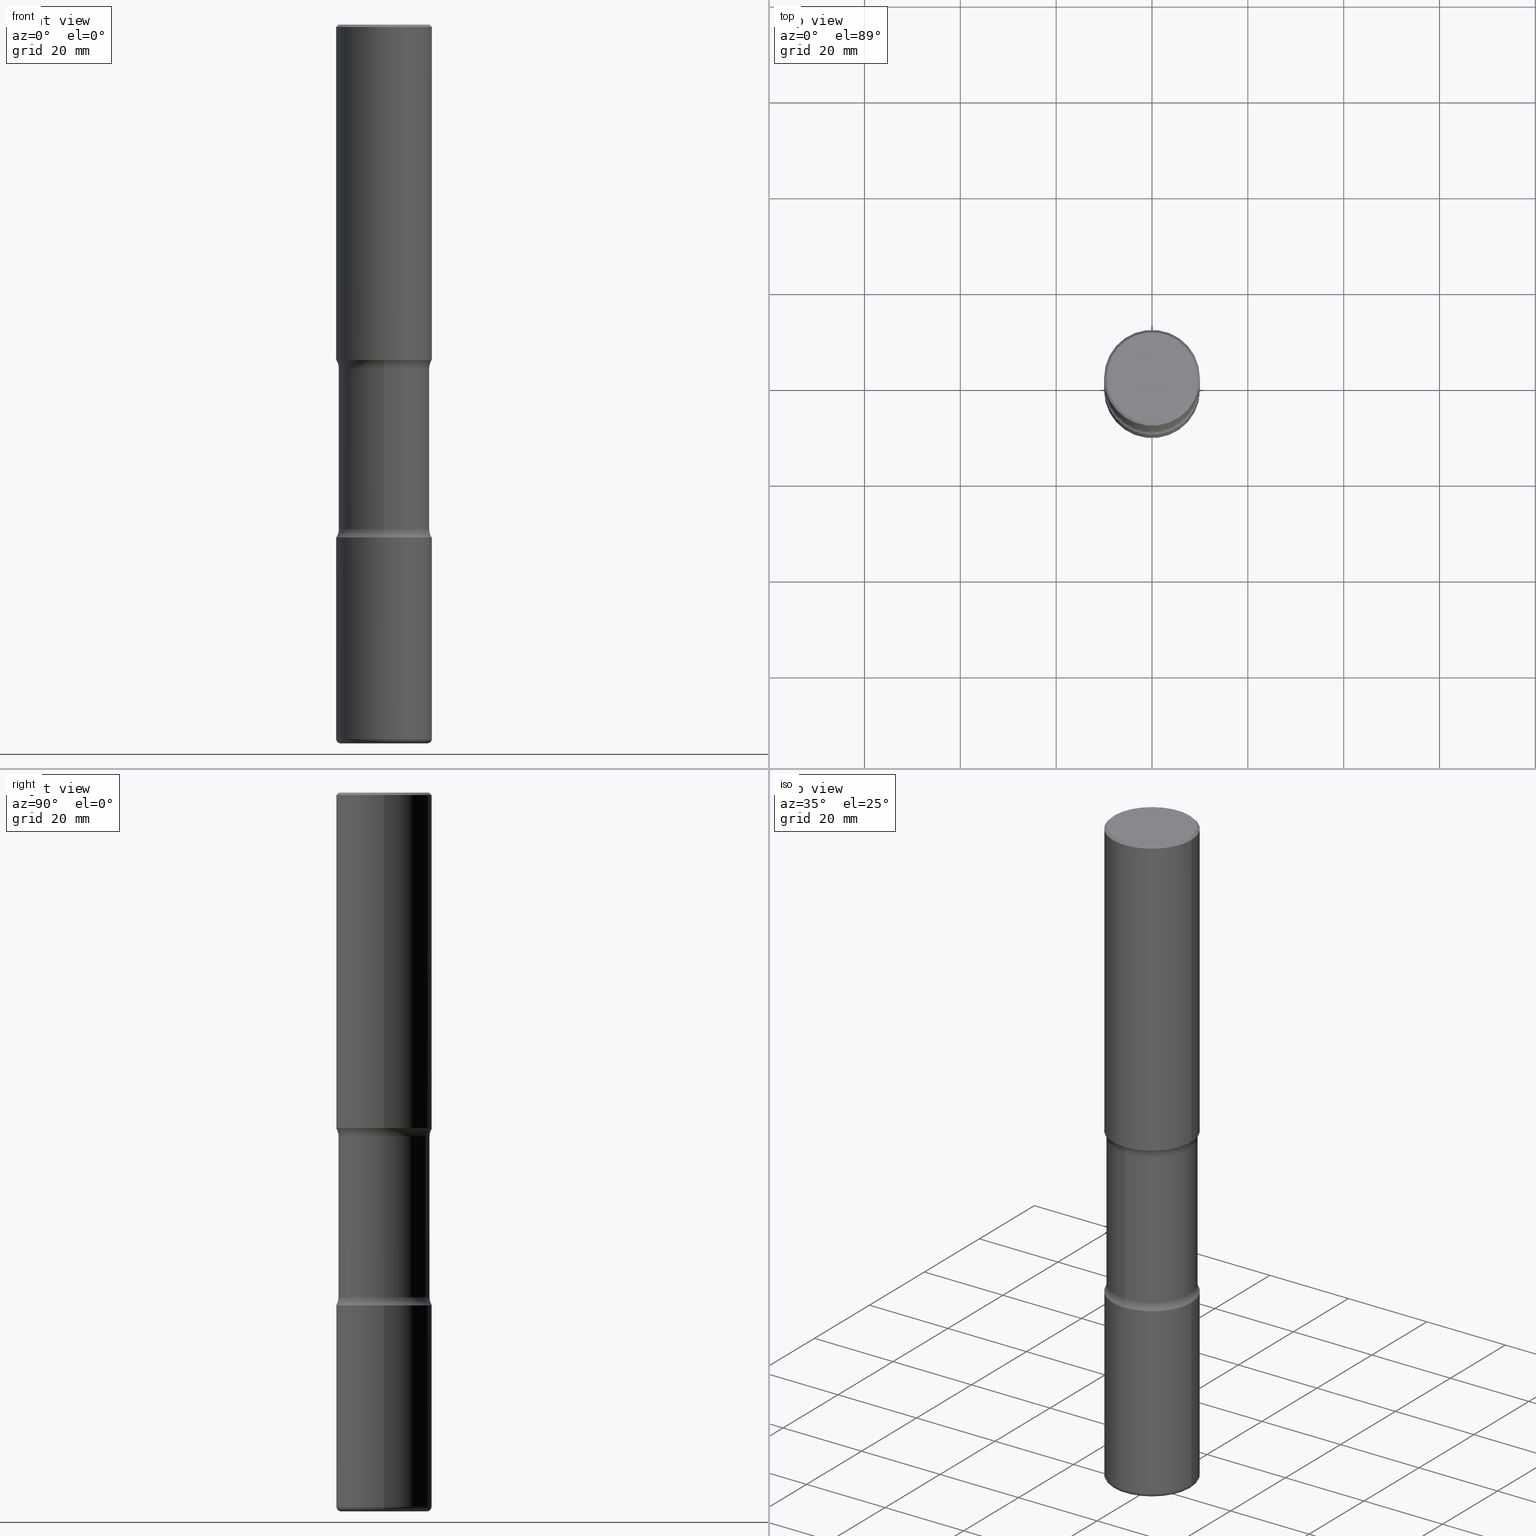
[diagram: canonical four-view strip — front | top / right | iso, engineering-drawing reading convention]
A machine part, canonical four-view strip (front | top / right | iso — engineering-drawing reading convention). The complete STEP part file that produces these views, byte-faithful:
ISO-10303-21;
HEADER;
FILE_DESCRIPTION (( 'STEP AP203' ),
    '1' );
FILE_NAME ('47742.STEP',
    '2024-03-02T08:18:57',
    ( '' ),
    ( '' ),
    'SwSTEP 2.0',
    'SolidWorks 2023',
    '' );
FILE_SCHEMA (( 'CONFIG_CONTROL_DESIGN' ));
ENDSEC;

DATA;
#1 = DIRECTION ( 'NONE',  ( -2.445468806185136597E-29, 3.491481338843145583E-15, 1.000000000000000000 ) ) ;
#2 = DIRECTION ( 'NONE',  ( -2.445468806185136597E-29, 3.491481338843145583E-15, 1.000000000000000000 ) ) ;
#3 = CARTESIAN_POINT ( 'NONE',  ( 1.453329336974072664E-28, -2.048779909082575425E-14, -5.905499999999998195 ) ) ;
#4 = CC_DESIGN_DATE_AND_TIME_ASSIGNMENT ( #299, #114, ( #406 ) ) ;
#5 = DIRECTION ( 'NONE',  ( 0.7071067811865466846, -7.319954787623252890E-15, -0.7071067811865483499 ) ) ;
#6 = CARTESIAN_POINT ( 'NONE',  ( 6.660667374498401538E-29, -9.735019662066511300E-15, -2.755899999999998240 ) ) ;
#7 = AXIS2_PLACEMENT_3D ( 'NONE', #196, #28, #375 ) ;
#8 = DIRECTION ( 'NONE',  ( -2.445468806185136877E-29, 3.491481338843145188E-15, 1.000000000000000000 ) ) ;
#9 = ORIENTED_EDGE ( 'NONE', *, *, #101, .T. ) ;
#10 = CARTESIAN_POINT ( 'NONE',  ( 1.453329336974072664E-28, -2.048779909082575425E-14, -5.905499999999998195 ) ) ;
#11 = EDGE_CURVE ( 'NONE', #360, #243, #505, .T. ) ;
#12 = DIRECTION ( 'NONE',  ( -6.982962677686266711E-15, -1.000000000000000000, 3.491481338843145583E-15 ) ) ;
#13 = CIRCLE ( 'NONE', #419, 0.3740000000000001656 ) ;
#14 = CALENDAR_DATE ( 2024, 2, 3 ) ;
#15 = CIRCLE ( 'NONE', #382, 0.3740000000000001656 ) ;
#16 = DIRECTION ( 'NONE',  ( 2.499563752616943710E-29, -3.414014296659653741E-15, -1.000000000000000000 ) ) ;
#17 = ADVANCED_FACE ( 'NONE', ( #352 ), #400, .T. ) ;
#18 = DIRECTION ( 'NONE',  ( 1.000000000000000000, 0.000000000000000000, 0.000000000000000000 ) ) ;
#19 = ORIENTED_EDGE ( 'NONE', *, *, #321, .F. ) ;
#20 = CARTESIAN_POINT ( 'NONE',  ( 2.611628041454809941E-15, 0.3739999999999796820, -5.905499999999999972 ) ) ;
#21 = APPLICATION_PROTOCOL_DEFINITION ( 'international standard', 'config_control_design', 1994, #560 ) ;
#22 = ORIENTED_EDGE ( 'NONE', *, *, #111, .T. ) ;
#23 = CARTESIAN_POINT ( 'NONE',  ( 6.739467482965614869E-29, -9.622173421717819657E-15, -2.755899999999998240 ) ) ;
#24 = CARTESIAN_POINT ( 'NONE',  ( -0.3936999999999999389, 2.679362779428219524E-15, -0.02000000000000010103 ) ) ;
#25 = ORIENTED_EDGE ( 'NONE', *, *, #97, .T. ) ;
#26 = VECTOR ( 'NONE', #510, 39.37007874015748143 ) ;
#27 = VECTOR ( 'NONE', #5, 39.37007874015748143 ) ;
#28 = DIRECTION ( 'NONE',  ( -2.445468806185136597E-29, 3.491481338843145583E-15, 1.000000000000000000 ) ) ;
#29 = ORIENTED_EDGE ( 'NONE', *, *, #530, .T. ) ;
#30 = ADVANCED_FACE ( 'NONE', ( #178 ), #394, .F. ) ;
#31 = PRODUCT ( '47742', '47742', '', ( #182 ) ) ;
#32 = CARTESIAN_POINT ( 'NONE',  ( -2.700978061722587749E-15, -0.3937000000000100419, -2.755899999999997352 ) ) ;
#33 = ORIENTED_EDGE ( 'NONE', *, *, #282, .T. ) ;
#34 = CC_DESIGN_PERSON_AND_ORGANIZATION_ASSIGNMENT ( #242, #126, ( #317 ) ) ;
#35 = CARTESIAN_POINT ( 'NONE',  ( -2.633402156444536217E-15, -0.3740000000000101577, -2.823256588393413313 ) ) ;
#36 = CALENDAR_DATE ( 2024, 2, 3 ) ;
#37 = AXIS2_PLACEMENT_3D ( 'NONE', #407, #188, #368 ) ;
#38 = DIRECTION ( 'NONE',  ( 1.000000000000000000, -6.982962677686265133E-15, 0.000000000000000000 ) ) ;
#39 = CARTESIAN_POINT ( 'NONE',  ( 1.030178189293550378E-28, -1.470821428801063089E-14, -4.212599999999998346 ) ) ;
#40 = DIRECTION ( 'NONE',  ( 2.499563752616943710E-29, -3.414014296659653741E-15, -1.000000000000000000 ) ) ;
#41 = CARTESIAN_POINT ( 'NONE',  ( 2.611628041454733028E-15, 0.3739999999999901736, -2.823256588393415534 ) ) ;
#42 = EDGE_CURVE ( 'NONE', #408, #417, #52, .T. ) ;
#43 = CARTESIAN_POINT ( 'NONE',  ( 4.890937612370298557E-31, -6.982962677686327354E-17, -0.02000000000000010103 ) ) ;
#44 = CARTESIAN_POINT ( 'NONE',  ( 1.434536456396262699E-28, -2.048137868178777275E-14, -5.866099999999998538 ) ) ;
#45 = VECTOR ( 'NONE', #184, 39.37007874015748143 ) ;
#46 = AXIS2_PLACEMENT_3D ( 'NONE', #39, #84, #254 ) ;
#47 = EDGE_CURVE ( 'NONE', #285, #247, #289, .T. ) ;
#48 = CARTESIAN_POINT ( 'NONE',  ( -2.633402156444500718E-15, -0.3740000000000146541, -4.145243411606582384 ) ) ;
#49 = CARTESIAN_POINT ( 'NONE',  ( -2.565826251166408560E-15, -0.3740000000000206493, -5.905499999999997307 ) ) ;
#50 = MANIFOLD_SOLID_BREP ( 'Body-Move/Copy2[4]', #324 ) ;
#51 = DIRECTION ( 'NONE',  ( 2.499563752616943710E-29, -3.414014296659653741E-15, -1.000000000000000000 ) ) ;
#52 = CIRCLE ( 'NONE', #310, 0.3936999999999999389 ) ;
#53 = AXIS2_PLACEMENT_3D ( 'NONE', #558, #160, #38 ) ;
#54 = ORIENTED_EDGE ( 'NONE', *, *, #426, .T. ) ;
#55 = ADVANCED_FACE ( 'NONE', ( #222 ), #397, .T. ) ;
#56 = VERTEX_POINT ( 'NONE', #171 ) ;
#57 = EDGE_LOOP ( 'NONE', ( #119, #94, #197, #458 ) ) ;
#58 = MANIFOLD_SOLID_BREP ( 'Body-Move/Copy2[2]', #105 ) ;
#59 = DIRECTION ( 'NONE',  ( 2.499563752616943710E-29, -3.414014296659653741E-15, -1.000000000000000000 ) ) ;
#60 = TOROIDAL_SURFACE ( 'NONE', #512, 0.4990000000000002212, 0.1249999999999998751 ) ;
#61 = AXIS2_PLACEMENT_3D ( 'NONE', #144, #278, #233 ) ;
#62 = CARTESIAN_POINT ( 'NONE',  ( 0.000000000000000000, 0.000000000000000000, 0.000000000000000000 ) ) ;
#63 = EDGE_CURVE ( 'NONE', #374, #543, #133, .T. ) ;
#64 = CARTESIAN_POINT ( 'NONE',  ( 1.030178189293550378E-28, -1.470821428801063089E-14, -4.212599999999998346 ) ) ;
#65 = ORIENTED_EDGE ( 'NONE', *, *, #101, .F. ) ;
#66 = CARTESIAN_POINT ( 'NONE',  ( -0.3936999999999999389, 2.679362779428219524E-15, -0.02000000000000010103 ) ) ;
#67 = APPROVAL_ROLE ( '' ) ;
#68 = ORIENTED_EDGE ( 'NONE', *, *, #282, .F. ) ;
#69 = DIRECTION ( 'NONE',  ( 1.000000000000000000, -6.982962677686266711E-15, 4.876212485538976239E-29 ) ) ;
#70 = ADVANCED_FACE ( 'NONE', ( #219 ), #525, .F. ) ;
#71 = ORIENTED_EDGE ( 'NONE', *, *, #128, .F. ) ;
#72 = APPROVAL_PERSON_ORGANIZATION ( #284, #309, #67 ) ;
#73 = DIRECTION ( 'NONE',  ( 2.499563752616943710E-29, -3.414014296659653741E-15, -1.000000000000000000 ) ) ;
#74 = EDGE_CURVE ( 'NONE', #149, #521, #492, .T. ) ;
#75 = SHAPE_DEFINITION_REPRESENTATION ( #271, #549 ) ;
#76 = EDGE_LOOP ( 'NONE', ( #112, #164 ) ) ;
#77 = DIRECTION ( 'NONE',  ( -1.000000000000000000, 6.982962677686265922E-15, -4.883557194083112340E-29 ) ) ;
#78 = ORIENTED_EDGE ( 'NONE', *, *, #189, .F. ) ;
#79 = DIRECTION ( 'NONE',  ( -2.445468806185136597E-29, 3.491481338843145583E-15, 1.000000000000000000 ) ) ;
#80 = APPROVAL_DATE_TIME ( #163, #309 ) ;
#81 = AXIS2_PLACEMENT_3D ( 'NONE', #501, #455, #69 ) ;
#82 = EDGE_CURVE ( 'NONE', #500, #374, #13, .T. ) ;
#83 = AXIS2_PLACEMENT_3D ( 'NONE', #43, #516, #211 ) ;
#84 = DIRECTION ( 'NONE',  ( -2.499563752616943430E-29, 3.414014296659653741E-15, 1.000000000000000000 ) ) ;
#85 = ORIENTED_EDGE ( 'NONE', *, *, #134, .F. ) ;
#86 = DIRECTION ( 'NONE',  ( 6.982962677686266711E-15, 1.000000000000000000, -2.921762560068729411E-15 ) ) ;
#87 = DIRECTION ( 'NONE',  ( 1.000000000000000000, -6.982962677686266711E-15, 4.876176775795935793E-29 ) ) ;
#88 = DIRECTION ( 'NONE',  ( -2.445468806185136877E-29, 3.491481338843145188E-15, 1.000000000000000000 ) ) ;
#89 = FACE_OUTER_BOUND ( 'NONE', #76, .T. ) ;
#90 = AXIS2_PLACEMENT_3D ( 'NONE', #328, #73, #320 ) ;
#91 = ORIENTED_EDGE ( 'NONE', *, *, #132, .T. ) ;
#92 = ORIENTED_EDGE ( 'NONE', *, *, #338, .F. ) ;
#93 = EDGE_LOOP ( 'NONE', ( #401, #91 ) ) ;
#94 = ORIENTED_EDGE ( 'NONE', *, *, #11, .T. ) ;
#95 = ORIENTED_EDGE ( 'NONE', *, *, #269, .T. ) ;
#96 = LINE ( 'NONE', #520, #251 ) ;
#97 = EDGE_CURVE ( 'NONE', #360, #122, #96, .T. ) ;
#98 = APPROVAL_PERSON_ORGANIZATION ( #366, #418, #499 ) ;
#99 = VERTEX_POINT ( 'NONE', #312 ) ;
#100 = CARTESIAN_POINT ( 'NONE',  ( 3.484498376165549498E-15, 0.4989999999999857327, -4.145243411606585049 ) ) ;
#101 = EDGE_CURVE ( 'NONE', #285, #243, #548, .T. ) ;
#102 = DIRECTION ( 'NONE',  ( 0.000000000000000000, 0.000000000000000000, 1.000000000000000000 ) ) ;
#103 = ORIENTED_EDGE ( 'NONE', *, *, #507, .F. ) ;
#104 = LINE ( 'NONE', #150, #45 ) ;
#105 = CLOSED_SHELL ( 'NONE', ( #519, #220, #456, #30, #70, #488 ) ) ;
#106 = CC_DESIGN_APPROVAL ( #418, ( #212 ) ) ;
#107 = ORIENTED_EDGE ( 'NONE', *, *, #74, .F. ) ;
#108 = CARTESIAN_POINT ( 'NONE',  ( -0.3736999999999999211, 2.644447966039788269E-15, 8.537024980182450727E-18 ) ) ;
#109 = DATE_AND_TIME ( #14, #174 ) ;
#110 = ORIENTED_EDGE ( 'NONE', *, *, #82, .F. ) ;
#111 = EDGE_CURVE ( 'NONE', #99, #56, #348, .T. ) ;
#112 = ORIENTED_EDGE ( 'NONE', *, *, #47, .F. ) ;
#113 = EDGE_CURVE ( 'NONE', #521, #149, #202, .T. ) ;
#114 = DATE_TIME_ROLE ( 'classification_date' ) ;
#115 = EDGE_LOOP ( 'NONE', ( #85, #266, #281, #68 ) ) ;
#116 = CIRCLE ( 'NONE', #559, 0.3740000000000001656 ) ;
#117 = APPROVAL_PERSON_ORGANIZATION ( #423, #185, #552 ) ;
#118 = CARTESIAN_POINT ( 'NONE',  ( 1.434536456396262699E-28, -2.048137868178777275E-14, -5.866099999999998538 ) ) ;
#119 = ORIENTED_EDGE ( 'NONE', *, *, #97, .F. ) ;
#120 = COORDINATED_UNIVERSAL_TIME_OFFSET ( 5, 0, .BEHIND. ) ;
#121 = CARTESIAN_POINT ( 'NONE',  ( 2.749192406205151847E-15, 0.3936999999999906685, -2.755899999999999572 ) ) ;
#122 = VERTEX_POINT ( 'NONE', #494 ) ;
#123 = APPROVAL_DATE_TIME ( #291, #185 ) ;
#124 = AXIS2_PLACEMENT_3D ( 'NONE', #331, #240, #199 ) ;
#125 = AXIS2_PLACEMENT_3D ( 'NONE', #318, #77, #393 ) ;
#126 = PERSON_AND_ORGANIZATION_ROLE ( 'creator' ) ;
#127 = DIRECTION ( 'NONE',  ( 1.000000000000000000, -6.982962677686266711E-15, 4.876176775795935793E-29 ) ) ;
#128 = EDGE_CURVE ( 'NONE', #156, #122, #546, .T. ) ;
#129 = AXIS2_PLACEMENT_3D ( 'NONE', #447, #497, #146 ) ;
#130 = DIRECTION ( 'NONE',  ( -1.000000000000000000, 6.982962677686265922E-15, -4.883557194083112340E-29 ) ) ;
#131 = AXIS2_PLACEMENT_3D ( 'NONE', #169, #308, #256 ) ;
#132 = EDGE_CURVE ( 'NONE', #122, #156, #381, .T. ) ;
#133 = LINE ( 'NONE', #49, #138 ) ;
#134 = EDGE_CURVE ( 'NONE', #379, #151, #180, .T. ) ;
#135 = DIRECTION ( 'NONE',  ( 1.000000000000000000, -6.982962677686265922E-15, 4.876176775795935793E-29 ) ) ;
#136 = ORIENTED_EDGE ( 'NONE', *, *, #304, .F. ) ;
#137 = DIRECTION ( 'NONE',  ( -1.000000000000000000, 6.982962677686265922E-15, -4.876176775795935793E-29 ) ) ;
#138 = VECTOR ( 'NONE', #59, 39.37007874015748143 ) ;
#139 = LOCAL_TIME ( 3, 18, 57.00000000000000000, #347 ) ;
#140 = PERSON_AND_ORGANIZATION_ROLE ( 'design_owner' ) ;
#141 = DIRECTION ( 'NONE',  ( 6.982962677686266711E-15, 1.000000000000000000, -2.921762560068729411E-15 ) ) ;
#142 = EDGE_CURVE ( 'NONE', #336, #489, #226, .T. ) ;
#143 = DIRECTION ( 'NONE',  ( -2.445468806185136597E-29, 3.491481338843145583E-15, 1.000000000000000000 ) ) ;
#144 = CARTESIAN_POINT ( 'NONE',  ( 0.000000000000000000, 0.000000000000000000, 0.000000000000000000 ) ) ;
#145 = ORIENTED_EDGE ( 'NONE', *, *, #557, .T. ) ;
#146 = DIRECTION ( 'NONE',  ( 6.982962677686265922E-15, 1.000000000000000000, -3.414014296659653741E-15 ) ) ;
#147 = AXIS2_PLACEMENT_3D ( 'NONE', #554, #390, #469 ) ;
#148 = COORDINATED_UNIVERSAL_TIME_OFFSET ( 5, 0, .BEHIND. ) ;
#149 = VERTEX_POINT ( 'NONE', #32 ) ;
#150 = CARTESIAN_POINT ( 'NONE',  ( 0.3937000000000002164, -2.749192406205084794E-15, 1.919750796630861012E-29 ) ) ;
#151 = VERTEX_POINT ( 'NONE', #108 ) ;
#152 = ADVANCED_FACE ( 'NONE', ( #405 ), #526, .F. ) ;
#153 = FACE_OUTER_BOUND ( 'NONE', #376, .T. ) ;
#154 = ORIENTED_EDGE ( 'NONE', *, *, #244, .F. ) ;
#155 = DIRECTION ( 'NONE',  ( 6.860497997771527618E-15, 1.000000000000000000, 0.000000000000000000 ) ) ;
#156 = VERTEX_POINT ( 'NONE', #542 ) ;
#157 = AXIS2_PLACEMENT_3D ( 'NONE', #6, #443, #402 ) ;
#158 = CC_DESIGN_SECURITY_CLASSIFICATION ( #406, ( #317 ) ) ;
#159 = FACE_OUTER_BOUND ( 'NONE', #364, .T. ) ;
#160 = DIRECTION ( 'NONE',  ( -2.445468806185136597E-29, 3.491481338843145583E-15, 1.000000000000000000 ) ) ;
#161 = CARTESIAN_POINT ( 'NONE',  ( 0.000000000000000000, 0.000000000000000000, 0.000000000000000000 ) ) ;
#162 = ORIENTED_EDGE ( 'NONE', *, *, #82, .T. ) ;
#163 = DATE_AND_TIME ( #550, #139 ) ;
#164 = ORIENTED_EDGE ( 'NONE', *, *, #524, .F. ) ;
#165 = DIRECTION ( 'NONE',  ( 6.982962677686265922E-15, 1.000000000000000000, -2.775563112689114723E-15 ) ) ;
#166 = AXIS2_PLACEMENT_3D ( 'NONE', #191, #378, #288 ) ;
#167 = CONICAL_SURFACE ( 'NONE', #83, 0.3936999999999999389, 0.7853981633974471688 ) ;
#168 = ADVANCED_FACE ( 'NONE', ( #286 ), #60, .F. ) ;
#169 = CARTESIAN_POINT ( 'NONE',  ( 1.444171603492632270E-28, -2.061894304653819197E-14, -5.905499999999999972 ) ) ;
#170 = CARTESIAN_POINT ( 'NONE',  ( -2.700978061722549884E-15, -0.3937000000000149269, -4.212599999999997458 ) ) ;
#171 = CARTESIAN_POINT ( 'NONE',  ( 2.611628041454766160E-15, 0.3739999999999856772, -4.145243411606584161 ) ) ;
#172 = AXIS2_PLACEMENT_3D ( 'NONE', #268, #12, #319 ) ;
#173 = DIRECTION ( 'NONE',  ( 2.499563752616943710E-29, -3.414014296659653741E-15, -1.000000000000000000 ) ) ;
#174 = LOCAL_TIME ( 3, 18, 57.00000000000000000, #148 ) ;
#175 = DIRECTION ( 'NONE',  ( 2.438088387897960049E-29, -3.491481338843145188E-15, -1.000000000000000000 ) ) ;
#176 = DIRECTION ( 'NONE',  ( -6.982962677686264344E-15, -1.000000000000000000, 0.000000000000000000 ) ) ;
#177 = EDGE_LOOP ( 'NONE', ( #462, #107 ) ) ;
#178 = FACE_OUTER_BOUND ( 'NONE', #370, .T. ) ;
#179 = DIRECTION ( 'NONE',  ( -2.438088387897960049E-29, 3.491481338843145188E-15, 1.000000000000000000 ) ) ;
#180 = CIRCLE ( 'NONE', #81, 0.3736999999999999211 ) ;
#181 = VECTOR ( 'NONE', #88, 39.37007874015748143 ) ;
#182 = MECHANICAL_CONTEXT ( 'NONE', #452, 'mechanical' ) ;
#183 = ORIENTED_EDGE ( 'NONE', *, *, #224, .T. ) ;
#184 = DIRECTION ( 'NONE',  ( -2.445468806185136877E-29, 3.491481338843145188E-15, 1.000000000000000000 ) ) ;
#185 = APPROVAL ( #205, 'UNSPECIFIED' ) ;
#186 = PERSON_AND_ORGANIZATION ( #515, #355 ) ;
#187 = ORIENTED_EDGE ( 'NONE', *, *, #338, .T. ) ;
#188 = DIRECTION ( 'NONE',  ( 7.105427357601001859E-15, 1.000000000000000000, -3.491481338843145583E-15 ) ) ;
#189 = EDGE_CURVE ( 'NONE', #243, #156, #104, .T. ) ;
#190 = EDGE_LOOP ( 'NONE', ( #399, #183, #145, #326 ) ) ;
#191 = CARTESIAN_POINT ( 'NONE',  ( 1.030178189293550378E-28, -1.470821428801063089E-14, -4.212599999999998346 ) ) ;
#192 = AXIS2_PLACEMENT_3D ( 'NONE', #522, #275, #311 ) ;
#193 = ADVANCED_FACE ( 'NONE', ( #415 ), #277, .F. ) ;
#194 = TOROIDAL_SURFACE ( 'NONE', #340, 0.4990000000000000546, 0.1249999999999998612 ) ;
#195 = EDGE_LOOP ( 'NONE', ( #450, #533 ) ) ;
#196 = CARTESIAN_POINT ( 'NONE',  ( 1.030178189293550378E-28, -1.470821428801063089E-14, -4.212599999999998346 ) ) ;
#197 = ORIENTED_EDGE ( 'NONE', *, *, #189, .T. ) ;
#198 = DESIGN_CONTEXT ( 'detailed design', #560, 'design' ) ;
#199 = DIRECTION ( 'NONE',  ( -1.000000000000000000, 6.982962677686266711E-15, 0.000000000000000000 ) ) ;
#200 = ORIENTED_EDGE ( 'NONE', *, *, #316, .T. ) ;
#201 = CC_DESIGN_PERSON_AND_ORGANIZATION_ASSIGNMENT ( #509, #335, ( #406 ) ) ;
#202 = CIRCLE ( 'NONE', #339, 0.3937000000000004385 ) ;
#203 = TOROIDAL_SURFACE ( 'NONE', #363, 0.3543000000000003924, 0.03940000000000026814 ) ;
#204 = DIRECTION ( 'NONE',  ( 2.499563752616943710E-29, -3.414014296659653741E-15, -1.000000000000000000 ) ) ;
#205 = APPROVAL_STATUS ( 'not_yet_approved' ) ;
#206 = EDGE_LOOP ( 'NONE', ( #330, #25, #71, #78 ) ) ;
#207 = CARTESIAN_POINT ( 'NONE',  ( 0.3936999999999999389, -2.770807688499514945E-15, -0.02000000000000010103 ) ) ;
#208 = ADVANCED_FACE ( 'NONE', ( #153 ), #435, .T. ) ;
#209 =( NAMED_UNIT ( * ) SI_UNIT ( $, .STERADIAN. ) SOLID_ANGLE_UNIT ( ) );
#210 = DIMENSIONAL_EXPONENTS ( 1.000000000000000000, 0.000000000000000000, 0.000000000000000000, 0.000000000000000000, 0.000000000000000000, 0.000000000000000000, 0.000000000000000000 ) ;
#211 = DIRECTION ( 'NONE',  ( -1.000000000000000000, 6.982962677686266711E-15, 0.000000000000000000 ) ) ;
#212 = PRODUCT_DEFINITION ( 'UNKNOWN', '', #317, #198 ) ;
#213 = CIRCLE ( 'NONE', #279, 0.3937000000000002720 ) ;
#214 = AXIS2_PLACEMENT_3D ( 'NONE', #248, #204, #86 ) ;
#215 = CARTESIAN_POINT ( 'NONE',  ( 6.739467482965614869E-29, -9.622173421717819657E-15, -2.755899999999998240 ) ) ;
#216 = AXIS2_PLACEMENT_3D ( 'NONE', #215, #179, #135 ) ;
#217 = DIRECTION ( 'NONE',  ( -2.445468806185136597E-29, 3.491481338843145583E-15, 1.000000000000000000 ) ) ;
#218 = CIRCLE ( 'NONE', #506, 0.3736999999999999211 ) ;
#219 = FACE_OUTER_BOUND ( 'NONE', #195, .T. ) ;
#220 = ADVANCED_FACE ( 'NONE', ( #235 ), #518, .T. ) ;
#221 = ORIENTED_EDGE ( 'NONE', *, *, #63, .T. ) ;
#222 = FACE_OUTER_BOUND ( 'NONE', #410, .T. ) ;
#223 = APPROVAL_DATE_TIME ( #449, #418 ) ;
#224 = EDGE_CURVE ( 'NONE', #444, #543, #354, .T. ) ;
#225 = LINE ( 'NONE', #20, #460 ) ;
#226 = CIRCLE ( 'NONE', #301, 0.3937000000000002164 ) ;
#227 = AXIS2_PLACEMENT_3D ( 'NONE', #272, #440, #137 ) ;
#228 = AXIS2_PLACEMENT_3D ( 'NONE', #369, #261, #87 ) ;
#229 = DIRECTION ( 'NONE',  ( 6.982962677686265922E-15, 1.000000000000000000, -2.775563112689114723E-15 ) ) ;
#230 = ORIENTED_EDGE ( 'NONE', *, *, #244, .T. ) ;
#231 = DIRECTION ( 'NONE',  ( 1.000000000000000000, -6.982962677686265133E-15, 0.000000000000000000 ) ) ;
#232 = ADVANCED_FACE ( 'NONE', ( #365 ), #337, .T. ) ;
#233 = DIRECTION ( 'NONE',  ( 1.000000000000000000, -6.982962677686266711E-15, 4.876176775795935793E-29 ) ) ;
#234 = EDGE_LOOP ( 'NONE', ( #19, #431, #292, #403 ) ) ;
#235 = FACE_OUTER_BOUND ( 'NONE', #115, .T. ) ;
#236 = AXIS2_PLACEMENT_3D ( 'NONE', #421, #40, #165 ) ;
#237 = CARTESIAN_POINT ( 'NONE',  ( 0.3937000000000001054, -2.749192406205084005E-15, 1.919750796630860452E-29 ) ) ;
#238 = CIRCLE ( 'NONE', #147, 0.1249999999999998335 ) ;
#239 = ORIENTED_EDGE ( 'NONE', *, *, #557, .F. ) ;
#240 = DIRECTION ( 'NONE',  ( 2.445468806185136597E-29, -3.491481338843145583E-15, -1.000000000000000000 ) ) ;
#241 = DIRECTION ( 'NONE',  ( 2.499563752616943710E-29, -3.414014296659653741E-15, -1.000000000000000000 ) ) ;
#242 = PERSON_AND_ORGANIZATION ( #515, #355 ) ;
#243 = VERTEX_POINT ( 'NONE', #463 ) ;
#244 = EDGE_CURVE ( 'NONE', #500, #56, #225, .T. ) ;
#245 = CARTESIAN_POINT ( 'NONE',  ( 6.856494937320590076E-29, -9.925643892983175518E-15, -2.823256588393414201 ) ) ;
#246 = LINE ( 'NONE', #425, #27 ) ;
#247 = VERTEX_POINT ( 'NONE', #490 ) ;
#248 = CARTESIAN_POINT ( 'NONE',  ( 1.013341980608738414E-28, -1.447825793226129018E-14, -4.145243411606583273 ) ) ;
#249 = CARTESIAN_POINT ( 'NONE',  ( 0.3736999999999999211, -2.667287895133367964E-15, 8.537024980219274507E-18 ) ) ;
#250 = SECURITY_CLASSIFICATION_LEVEL ( 'unclassified' ) ;
#251 = VECTOR ( 'NONE', #8, 39.37007874015748143 ) ;
#252 = CC_DESIGN_APPROVAL ( #185, ( #406 ) ) ;
#253 = DIRECTION ( 'NONE',  ( -2.445468806185136597E-29, 3.491481338843145583E-15, 1.000000000000000000 ) ) ;
#254 = DIRECTION ( 'NONE',  ( -6.982962677686265922E-15, -1.000000000000000000, 3.414014296659653741E-15 ) ) ;
#255 = CARTESIAN_POINT ( 'NONE',  ( 1.030178189293550378E-28, -1.470821428801063089E-14, -4.212599999999998346 ) ) ;
#256 = DIRECTION ( 'NONE',  ( 1.000000000000000000, -6.982962677686265133E-15, 0.000000000000000000 ) ) ;
#257 = EDGE_CURVE ( 'NONE', #99, #444, #213, .T. ) ;
#258 = CARTESIAN_POINT ( 'NONE',  ( 6.856494937320590076E-29, -9.925643892983175518E-15, -2.823256588393414201 ) ) ;
#259 = DIRECTION ( 'NONE',  ( 6.982962677686266711E-15, 1.000000000000000000, -2.921762560068729411E-15 ) ) ;
#260 = AXIS2_PLACEMENT_3D ( 'NONE', #10, #51, #487 ) ;
#261 = DIRECTION ( 'NONE',  ( -2.445468806185136597E-29, 3.491481338843145583E-15, 1.000000000000000000 ) ) ;
#262 = LOCAL_TIME ( 3, 18, 57.00000000000000000, #296 ) ;
#263 = DIRECTION ( 'NONE',  ( 6.982962677686265922E-15, 1.000000000000000000, -2.775563112689113540E-15 ) ) ;
#264 = CARTESIAN_POINT ( 'NONE',  ( 1.723044131305019458E-29, -3.883280511437256617E-14, -5.905499999999998195 ) ) ;
#265 = ORIENTED_EDGE ( 'NONE', *, *, #321, .T. ) ;
#266 = ORIENTED_EDGE ( 'NONE', *, *, #429, .T. ) ;
#267 = AXIS2_PLACEMENT_3D ( 'NONE', #544, #323, #155 ) ;
#268 = CARTESIAN_POINT ( 'NONE',  ( 0.3543000000000003924, -2.295544235849201754E-14, -5.866099999999998538 ) ) ;
#269 = EDGE_CURVE ( 'NONE', #247, #360, #445, .T. ) ;
#270 = ORIENTED_EDGE ( 'NONE', *, *, #142, .T. ) ;
#271 = PRODUCT_DEFINITION_SHAPE ( 'NONE', 'NONE',  #212 ) ;
#272 = CARTESIAN_POINT ( 'NONE',  ( 2.609533152651356620E-15, 0.3736999999999999211, -1.300498063835582814E-15 ) ) ;
#273 = CC_DESIGN_PERSON_AND_ORGANIZATION_ASSIGNMENT ( #536, #329, ( #212 ) ) ;
#274 = DIRECTION ( 'NONE',  ( 6.982962677686265922E-15, 1.000000000000000000, -3.414014296659653741E-15 ) ) ;
#275 = DIRECTION ( 'NONE',  ( -2.445468806185136597E-29, 3.491481338843145583E-15, 1.000000000000000000 ) ) ;
#276 = ORIENTED_EDGE ( 'NONE', *, *, #11, .F. ) ;
#277 = PLANE ( 'NONE',  #129 ) ;
#278 = DIRECTION ( 'NONE',  ( -2.445468806185136597E-29, 3.491481338843145583E-15, 1.000000000000000000 ) ) ;
#279 = AXIS2_PLACEMENT_3D ( 'NONE', #64, #451, #229 ) ;
#280 = COORDINATED_UNIVERSAL_TIME_OFFSET ( 5, 0, .BEHIND. ) ;
#281 = ORIENTED_EDGE ( 'NONE', *, *, #42, .T. ) ;
#282 = EDGE_CURVE ( 'NONE', #151, #417, #534, .T. ) ;
#283 = CARTESIAN_POINT ( 'NONE',  ( 0.000000000000000000, 0.000000000000000000, 0.000000000000000000 ) ) ;
#284 = PERSON_AND_ORGANIZATION ( #515, #355 ) ;
#285 = VERTEX_POINT ( 'NONE', #424 ) ;
#286 = FACE_OUTER_BOUND ( 'NONE', #190, .T. ) ;
#287 = EDGE_LOOP ( 'NONE', ( #545, #110, #54, #541 ) ) ;
#288 = DIRECTION ( 'NONE',  ( 1.000000000000000000, -6.982962677686269077E-15, 0.000000000000000000 ) ) ;
#289 = CIRCLE ( 'NONE', #467, 0.3543000000000003924 ) ;
#290 = LOCAL_TIME ( 3, 18, 57.00000000000000000, #120 ) ;
#291 = DATE_AND_TIME ( #511, #262 ) ;
#292 = ORIENTED_EDGE ( 'NONE', *, *, #74, .T. ) ;
#293 = DIRECTION ( 'NONE',  ( 1.000000000000000000, -6.982962677686266711E-15, 4.876176775795935793E-29 ) ) ;
#294 = PLANE ( 'NONE',  #302 ) ;
#295 = CC_DESIGN_DATE_AND_TIME_ASSIGNMENT ( #109, #325, ( #212 ) ) ;
#296 = COORDINATED_UNIVERSAL_TIME_OFFSET ( 5, 0, .BEHIND. ) ;
#297 = EDGE_LOOP ( 'NONE', ( #409, #392, #9, #276 ) ) ;
#298 = DIRECTION ( 'NONE',  ( 1.000000000000000000, -6.982962677686265133E-15, 0.000000000000000000 ) ) ;
#299 = DATE_AND_TIME ( #36, #290 ) ;
#300 = PLANE ( 'NONE',  #46 ) ;
#301 = AXIS2_PLACEMENT_3D ( 'NONE', #23, #459, #231 ) ;
#302 = AXIS2_PLACEMENT_3D ( 'NONE', #255, #175, #439 ) ;
#303 = UNCERTAINTY_MEASURE_WITH_UNIT (LENGTH_MEASURE( 1.000000000000000082E-05 ), #344, 'distance_accuracy_value', 'NONE');
#304 = EDGE_CURVE ( 'NONE', #489, #417, #465, .T. ) ;
#305 = CARTESIAN_POINT ( 'NONE',  ( 1.434536456396262699E-28, -2.048137868178777275E-14, -5.866099999999998538 ) ) ;
#306 = DIRECTION ( 'NONE',  ( -2.445468806185136877E-29, 3.491481338843145188E-15, 1.000000000000000000 ) ) ;
#307 = CARTESIAN_POINT ( 'NONE',  ( -0.3937000000000004385, -1.768397193110025560E-14, -5.866099999999998538 ) ) ;
#308 = DIRECTION ( 'NONE',  ( -2.445468806185136597E-29, 3.491481338843145583E-15, 1.000000000000000000 ) ) ;
#309 = APPROVAL ( #453, 'UNSPECIFIED' ) ;
#310 = AXIS2_PLACEMENT_3D ( 'NONE', #529, #356, #315 ) ;
#311 = DIRECTION ( 'NONE',  ( 1.000000000000000000, -6.982962677686265133E-15, 0.000000000000000000 ) ) ;
#312 = CARTESIAN_POINT ( 'NONE',  ( 2.749192406205187346E-15, 0.3936999999999854505, -4.212600000000000122 ) ) ;
#313 = ORIENTED_EDGE ( 'NONE', *, *, #496, .T. ) ;
#314 = DIRECTION ( 'NONE',  ( 2.499563752616943710E-29, -3.414014296659653741E-15, -1.000000000000000000 ) ) ;
#315 = DIRECTION ( 'NONE',  ( 1.000000000000000000, -6.982962677686266711E-15, 0.000000000000000000 ) ) ;
#316 = EDGE_CURVE ( 'NONE', #444, #99, #482, .T. ) ;
#317 = PRODUCT_DEFINITION_FORMATION_WITH_SPECIFIED_SOURCE ( 'ANY', '', #31, .NOT_KNOWN. ) ;
#318 = CARTESIAN_POINT ( 'NONE',  ( 3.484498376165515577E-15, 0.4989999999999901736, -2.823256588393415534 ) ) ;
#319 = DIRECTION ( 'NONE',  ( 1.000000000000000000, -6.982962677686280910E-15, 0.000000000000000000 ) ) ;
#320 = DIRECTION ( 'NONE',  ( 6.982962677686265922E-15, 1.000000000000000000, -3.414014296659653741E-15 ) ) ;
#321 = EDGE_CURVE ( 'NONE', #374, #500, #116, .T. ) ;
#322 = ORIENTED_EDGE ( 'NONE', *, *, #42, .F. ) ;
#323 = DIRECTION ( 'NONE',  ( 1.000000000000000000, -6.860497997771530774E-15, 4.841747577276637457E-29 ) ) ;
#324 = CLOSED_SHELL ( 'NONE', ( #17, #168, #332, #478, #193, #398, #152, #55 ) ) ;
#325 = DATE_TIME_ROLE ( 'creation_date' ) ;
#326 = ORIENTED_EDGE ( 'NONE', *, *, #111, .F. ) ;
#327 =( NAMED_UNIT ( * ) PLANE_ANGLE_UNIT ( ) SI_UNIT ( $, .RADIAN. ) );
#328 = CARTESIAN_POINT ( 'NONE',  ( 1.013706345712835491E-28, -1.447304001658688186E-14, -4.145243411606583273 ) ) ;
#329 = PERSON_AND_ORGANIZATION_ROLE ( 'creator' ) ;
#330 = ORIENTED_EDGE ( 'NONE', *, *, #507, .T. ) ;
#331 = CARTESIAN_POINT ( 'NONE',  ( 4.890937612370298557E-31, -6.982962677686327354E-17, -0.02000000000000010103 ) ) ;
#332 = ADVANCED_FACE ( 'NONE', ( #553 ), #428, .F. ) ;
#333 = FACE_OUTER_BOUND ( 'NONE', #362, .T. ) ;
#334 = CARTESIAN_POINT ( 'NONE',  ( -2.087702828670439639E-46, 2.980686340760894400E-32, 8.537024980200822558E-18 ) ) ;
#335 = PERSON_AND_ORGANIZATION_ROLE ( 'classification_officer' ) ;
#336 = VERTEX_POINT ( 'NONE', #472 ) ;
#337 = CYLINDRICAL_SURFACE ( 'NONE', #361, 0.3937000000000002164 ) ;
#338 = EDGE_CURVE ( 'NONE', #417, #408, #446, .T. ) ;
#339 = AXIS2_PLACEMENT_3D ( 'NONE', #437, #477, #263 ) ;
#340 = AXIS2_PLACEMENT_3D ( 'NONE', #245, #241, #416 ) ;
#341 = ORIENTED_EDGE ( 'NONE', *, *, #257, .F. ) ;
#342 = DIRECTION ( 'NONE',  ( 1.000000000000000000, -6.982962677686266711E-15, 4.883557194083112340E-29 ) ) ;
#343 = PERSON_AND_ORGANIZATION ( #515, #355 ) ;
#344 =( CONVERSION_BASED_UNIT ( 'INCH', #551 ) LENGTH_UNIT ( ) NAMED_UNIT ( #210 ) );
#345 = ADVANCED_FACE ( 'NONE', ( #89 ), #351, .T. ) ;
#346 = FACE_OUTER_BOUND ( 'NONE', #297, .T. ) ;
#347 = COORDINATED_UNIVERSAL_TIME_OFFSET ( 5, 0, .BEHIND. ) ;
#348 = CIRCLE ( 'NONE', #538, 0.1249999999999999029 ) ;
#349 = CYLINDRICAL_SURFACE ( 'NONE', #430, 0.3937000000000001054 ) ;
#350 = PRODUCT_RELATED_PRODUCT_CATEGORY ( 'detail', '', ( #31 ) ) ;
#351 = PLANE ( 'NONE',  #436 ) ;
#352 = FACE_OUTER_BOUND ( 'NONE', #508, .T. ) ;
#353 = FACE_OUTER_BOUND ( 'NONE', #479, .T. ) ;
#354 = CIRCLE ( 'NONE', #267, 0.1249999999999999029 ) ;
#355 = ORGANIZATION ( 'UNSPECIFIED', 'UNSPECIFIED', '' ) ;
#356 = DIRECTION ( 'NONE',  ( -2.445468806185136597E-29, 3.491481338843145583E-15, 1.000000000000000000 ) ) ;
#357 = ORIENTED_EDGE ( 'NONE', *, *, #474, .F. ) ;
#358 = ADVANCED_FACE ( 'NONE', ( #434 ), #294, .F. ) ;
#359 = CARTESIAN_POINT ( 'NONE',  ( 1.444171603492632270E-28, -2.061894304653819197E-14, -5.905499999999999972 ) ) ;
#360 = VERTEX_POINT ( 'NONE', #307 ) ;
#361 = AXIS2_PLACEMENT_3D ( 'NONE', #283, #504, #293 ) ;
#362 = EDGE_LOOP ( 'NONE', ( #136, #29, #367, #92 ) ) ;
#363 = AXIS2_PLACEMENT_3D ( 'NONE', #305, #547, #342 ) ;
#364 = EDGE_LOOP ( 'NONE', ( #270, #537, #322, #454 ) ) ;
#365 = FACE_OUTER_BOUND ( 'NONE', #206, .T. ) ;
#366 = PERSON_AND_ORGANIZATION ( #515, #355 ) ;
#367 = ORIENTED_EDGE ( 'NONE', *, *, #470, .T. ) ;
#368 = DIRECTION ( 'NONE',  ( -1.000000000000000000, 7.105427357600976615E-15, 0.000000000000000000 ) ) ;
#369 = CARTESIAN_POINT ( 'NONE',  ( 0.000000000000000000, 0.000000000000000000, 0.000000000000000000 ) ) ;
#370 = EDGE_LOOP ( 'NONE', ( #464, #527 ) ) ;
#371 = CARTESIAN_POINT ( 'NONE',  ( 1.013706345712835491E-28, -1.447304001658688186E-14, -4.145243411606583273 ) ) ;
#372 = AXIS2_PLACEMENT_3D ( 'NONE', #118, #143, #411 ) ;
#373 = CIRCLE ( 'NONE', #53, 0.3937000000000002164 ) ;
#374 = VERTEX_POINT ( 'NONE', #35 ) ;
#375 = DIRECTION ( 'NONE',  ( 1.000000000000000000, -6.982962677686269077E-15, 0.000000000000000000 ) ) ;
#376 = EDGE_LOOP ( 'NONE', ( #555, #95, #103, #65 ) ) ;
#377 = CC_DESIGN_PERSON_AND_ORGANIZATION_ASSIGNMENT ( #186, #140, ( #31 ) ) ;
#378 = DIRECTION ( 'NONE',  ( -2.445468806185136597E-29, 3.491481338843145583E-15, 1.000000000000000000 ) ) ;
#379 = VERTEX_POINT ( 'NONE', #249 ) ;
#380 = CARTESIAN_POINT ( 'NONE',  ( -0.3937000000000002720, -2.048594773559823141E-15, -2.755899999999998240 ) ) ;
#381 = CIRCLE ( 'NONE', #7, 0.3937000000000002720 ) ;
#382 = AXIS2_PLACEMENT_3D ( 'NONE', #385, #422, #259 ) ;
#383 = CARTESIAN_POINT ( 'NONE',  ( -0.3937000000000001054, 2.797406750687515181E-15, -1.936584745033357016E-29 ) ) ;
#384 = CARTESIAN_POINT ( 'NONE',  ( 6.829029461346524548E-29, -9.964976017815853586E-15, -2.823256588393414646 ) ) ;
#385 = CARTESIAN_POINT ( 'NONE',  ( 1.013341980608738414E-28, -1.447825793226129018E-14, -4.145243411606583273 ) ) ;
#386 = FACE_OUTER_BOUND ( 'NONE', #517, .T. ) ;
#387 = AXIS2_PLACEMENT_3D ( 'NONE', #3, #314, #141 ) ;
#388 = CIRCLE ( 'NONE', #539, 0.3937000000000002164 ) ;
#389 = DIRECTION ( 'NONE',  ( 2.499563752616943710E-29, -3.414014296659653741E-15, -1.000000000000000000 ) ) ;
#390 = DIRECTION ( 'NONE',  ( 1.000000000000000000, -6.860497997771530774E-15, 4.841747577276637457E-29 ) ) ;
#391 = CC_DESIGN_PERSON_AND_ORGANIZATION_ASSIGNMENT ( #343, #471, ( #317 ) ) ;
#392 = ORIENTED_EDGE ( 'NONE', *, *, #524, .T. ) ;
#393 = DIRECTION ( 'NONE',  ( -6.982962677686268288E-15, -1.000000000000000000, 0.000000000000000000 ) ) ;
#394 = PLANE ( 'NONE',  #227 ) ;
#395 = CLOSED_SHELL ( 'NONE', ( #232, #208, #345, #535, #413, #358 ) ) ;
#396 =( GEOMETRIC_REPRESENTATION_CONTEXT ( 3 ) GLOBAL_UNCERTAINTY_ASSIGNED_CONTEXT ( ( #303 ) ) GLOBAL_UNIT_ASSIGNED_CONTEXT ( ( #344, #327, #209 ) ) REPRESENTATION_CONTEXT ( 'NONE', 'WORKASPACE' ) );
#397 = CYLINDRICAL_SURFACE ( 'NONE', #387, 0.3740000000000001656 ) ;
#398 = ADVANCED_FACE ( 'NONE', ( #386 ), #300, .F. ) ;
#399 = ORIENTED_EDGE ( 'NONE', *, *, #316, .F. ) ;
#400 = CYLINDRICAL_SURFACE ( 'NONE', #260, 0.3740000000000001656 ) ;
#401 = ORIENTED_EDGE ( 'NONE', *, *, #128, .T. ) ;
#402 = DIRECTION ( 'NONE',  ( 6.982962677686265922E-15, 1.000000000000000000, -2.775563112689113540E-15 ) ) ;
#403 = ORIENTED_EDGE ( 'NONE', *, *, #426, .F. ) ;
#404 = AXIS2_PLACEMENT_3D ( 'NONE', #258, #485, #274 ) ;
#405 = FACE_OUTER_BOUND ( 'NONE', #523, .T. ) ;
#406 = SECURITY_CLASSIFICATION ( '', '', #250 ) ;
#407 = CARTESIAN_POINT ( 'NONE',  ( -0.3543000000000003924, -1.796392576898973579E-14, -5.866099999999998538 ) ) ;
#408 = VERTEX_POINT ( 'NONE', #207 ) ;
#409 = ORIENTED_EDGE ( 'NONE', *, *, #269, .F. ) ;
#410 = EDGE_LOOP ( 'NONE', ( #495, #265, #230, #239 ) ) ;
#411 = DIRECTION ( 'NONE',  ( 1.000000000000000000, -6.982962677686266711E-15, 4.883557194083112340E-29 ) ) ;
#412 = VECTOR ( 'NONE', #306, 39.37007874015748143 ) ;
#413 = ADVANCED_FACE ( 'NONE', ( #556 ), #438, .T. ) ;
#414 = ORIENTED_EDGE ( 'NONE', *, *, #429, .F. ) ;
#415 = FACE_OUTER_BOUND ( 'NONE', #177, .T. ) ;
#416 = DIRECTION ( 'NONE',  ( 6.982962677686265922E-15, 1.000000000000000000, -3.414014296659653741E-15 ) ) ;
#417 = VERTEX_POINT ( 'NONE', #24 ) ;
#418 = APPROVAL ( #532, 'UNSPECIFIED' ) ;
#419 = AXIS2_PLACEMENT_3D ( 'NONE', #481, #173, #480 ) ;
#420 = AXIS2_PLACEMENT_3D ( 'NONE', #441, #253, #475 ) ;
#421 = CARTESIAN_POINT ( 'NONE',  ( 1.030178189293550378E-28, -1.470821428801063089E-14, -4.212599999999998346 ) ) ;
#422 = DIRECTION ( 'NONE',  ( 2.499563752616943710E-29, -3.414014296659653741E-15, -1.000000000000000000 ) ) ;
#423 = PERSON_AND_ORGANIZATION ( #515, #355 ) ;
#424 = CARTESIAN_POINT ( 'NONE',  ( 0.3543000000000003924, -2.309300672324243991E-14, -5.905499999999999972 ) ) ;
#425 = CARTESIAN_POINT ( 'NONE',  ( 0.3936999999999999389, -2.770807688499514945E-15, -0.02000000000000010103 ) ) ;
#426 = EDGE_CURVE ( 'NONE', #500, #521, #476, .T. ) ;
#427 = MANIFOLD_SOLID_BREP ( 'Body-Move/Copy2[1]', #395 ) ;
#428 = TOROIDAL_SURFACE ( 'NONE', #404, 0.4990000000000000546, 0.1249999999999998612 ) ;
#429 = EDGE_CURVE ( 'NONE', #379, #408, #246, .T. ) ;
#430 = AXIS2_PLACEMENT_3D ( 'NONE', #161, #1, #127 ) ;
#431 = ORIENTED_EDGE ( 'NONE', *, *, #514, .T. ) ;
#432 = DIRECTION ( 'NONE',  ( 2.438088387897960049E-29, -3.491481338843145188E-15, -1.000000000000000000 ) ) ;
#433 = ORIENTED_EDGE ( 'NONE', *, *, #224, .F. ) ;
#434 = FACE_OUTER_BOUND ( 'NONE', #93, .T. ) ;
#435 = TOROIDAL_SURFACE ( 'NONE', #372, 0.3543000000000003924, 0.03940000000000026814 ) ;
#436 = AXIS2_PLACEMENT_3D ( 'NONE', #264, #432, #457 ) ;
#437 = CARTESIAN_POINT ( 'NONE',  ( 6.660667374498401538E-29, -9.735019662066511300E-15, -2.755899999999998240 ) ) ;
#438 = CYLINDRICAL_SURFACE ( 'NONE', #61, 0.3937000000000002164 ) ;
#439 = DIRECTION ( 'NONE',  ( -1.000000000000000000, 6.982962677686265922E-15, -4.876176775795935793E-29 ) ) ;
#440 = DIRECTION ( 'NONE',  ( 2.438088387897960049E-29, -3.491481338843145188E-15, -1.000000000000000000 ) ) ;
#441 = CARTESIAN_POINT ( 'NONE',  ( 4.890937612370298557E-31, -6.982962677686327354E-17, -0.02000000000000010103 ) ) ;
#442 = APPLICATION_PROTOCOL_DEFINITION ( 'international standard', 'config_control_design', 1994, #452 ) ;
#443 = DIRECTION ( 'NONE',  ( 2.499563752616943710E-29, -3.414014296659653741E-15, -1.000000000000000000 ) ) ;
#444 = VERTEX_POINT ( 'NONE', #170 ) ;
#445 = CIRCLE ( 'NONE', #37, 0.03940000000000026814 ) ;
#446 = CIRCLE ( 'NONE', #420, 0.3936999999999999389 ) ;
#447 = CARTESIAN_POINT ( 'NONE',  ( 6.739467482965614869E-29, -9.622173421717819657E-15, -2.755899999999998240 ) ) ;
#448 = CYLINDRICAL_SURFACE ( 'NONE', #228, 0.3937000000000001054 ) ;
#449 = DATE_AND_TIME ( #486, #483 ) ;
#450 = ORIENTED_EDGE ( 'NONE', *, *, #142, .F. ) ;
#451 = DIRECTION ( 'NONE',  ( 2.499563752616943710E-29, -3.414014296659653741E-15, -1.000000000000000000 ) ) ;
#452 = APPLICATION_CONTEXT ( 'configuration controlled 3d designs of mechanical parts and assemblies' ) ;
#453 = APPROVAL_STATUS ( 'not_yet_approved' ) ;
#454 = ORIENTED_EDGE ( 'NONE', *, *, #470, .F. ) ;
#455 = DIRECTION ( 'NONE',  ( -2.445468806185136597E-29, 3.491481338843145583E-15, 1.000000000000000000 ) ) ;
#456 = ADVANCED_FACE ( 'NONE', ( #353 ), #167, .T. ) ;
#457 = DIRECTION ( 'NONE',  ( -1.000000000000000000, 6.982962677686265922E-15, -4.876176775795935793E-29 ) ) ;
#458 = ORIENTED_EDGE ( 'NONE', *, *, #132, .F. ) ;
#459 = DIRECTION ( 'NONE',  ( -2.445468806185136597E-29, 3.491481338843145583E-15, 1.000000000000000000 ) ) ;
#460 = VECTOR ( 'NONE', #531, 39.37007874015748143 ) ;
#461 = CIRCLE ( 'NONE', #131, 0.3543000000000003924 ) ;
#462 = ORIENTED_EDGE ( 'NONE', *, *, #113, .F. ) ;
#463 = CARTESIAN_POINT ( 'NONE',  ( 0.3937000000000004385, -2.323057108799285912E-14, -5.866099999999998538 ) ) ;
#464 = ORIENTED_EDGE ( 'NONE', *, *, #474, .T. ) ;
#465 = LINE ( 'NONE', #383, #412 ) ;
#466 =( LENGTH_UNIT ( ) NAMED_UNIT ( * ) SI_UNIT ( $, .METRE. ) );
#467 = AXIS2_PLACEMENT_3D ( 'NONE', #359, #217, #484 ) ;
#468 = DIRECTION ( 'NONE',  ( 6.982962677686266711E-15, 1.000000000000000000, -2.921762560068729411E-15 ) ) ;
#469 = DIRECTION ( 'NONE',  ( 6.860497997771531562E-15, 1.000000000000000000, 0.000000000000000000 ) ) ;
#470 = EDGE_CURVE ( 'NONE', #336, #408, #473, .T. ) ;
#471 = PERSON_AND_ORGANIZATION_ROLE ( 'design_supplier' ) ;
#472 = CARTESIAN_POINT ( 'NONE',  ( 0.3937000000000002164, -1.237136582792290287E-14, -2.755899999999998240 ) ) ;
#473 = LINE ( 'NONE', #237, #181 ) ;
#474 = EDGE_CURVE ( 'NONE', #151, #379, #218, .T. ) ;
#475 = DIRECTION ( 'NONE',  ( 1.000000000000000000, -6.982962677686266711E-15, 0.000000000000000000 ) ) ;
#476 = CIRCLE ( 'NONE', #125, 0.1249999999999998335 ) ;
#477 = DIRECTION ( 'NONE',  ( 2.499563752616943710E-29, -3.414014296659653741E-15, -1.000000000000000000 ) ) ;
#478 = ADVANCED_FACE ( 'NONE', ( #498 ), #194, .F. ) ;
#479 = EDGE_LOOP ( 'NONE', ( #414, #357, #33, #187 ) ) ;
#480 = DIRECTION ( 'NONE',  ( 6.982962677686266711E-15, 1.000000000000000000, -2.921762560068729411E-15 ) ) ;
#481 = CARTESIAN_POINT ( 'NONE',  ( 6.829029461346524548E-29, -9.964976017815853586E-15, -2.823256588393414646 ) ) ;
#482 = CIRCLE ( 'NONE', #236, 0.3937000000000002720 ) ;
#483 = LOCAL_TIME ( 3, 18, 57.00000000000000000, #280 ) ;
#484 = DIRECTION ( 'NONE',  ( 1.000000000000000000, -6.982962677686265133E-15, 0.000000000000000000 ) ) ;
#485 = DIRECTION ( 'NONE',  ( 2.499563752616943710E-29, -3.414014296659653741E-15, -1.000000000000000000 ) ) ;
#486 = CALENDAR_DATE ( 2024, 2, 3 ) ;
#487 = DIRECTION ( 'NONE',  ( 6.982962677686266711E-15, 1.000000000000000000, -2.921762560068729411E-15 ) ) ;
#488 = ADVANCED_FACE ( 'NONE', ( #333 ), #448, .T. ) ;
#489 = VERTEX_POINT ( 'NONE', #380 ) ;
#490 = CARTESIAN_POINT ( 'NONE',  ( -0.3543000000000003924, -1.789273103242020530E-14, -5.905499999999999972 ) ) ;
#491 = ORIENTED_EDGE ( 'NONE', *, *, #257, .T. ) ;
#492 = CIRCLE ( 'NONE', #157, 0.3937000000000004385 ) ;
#493 = CC_DESIGN_APPROVAL ( #309, ( #317 ) ) ;
#494 = CARTESIAN_POINT ( 'NONE',  ( -0.3937000000000002720, -1.479738973421168625E-14, -4.212599999999998346 ) ) ;
#495 = ORIENTED_EDGE ( 'NONE', *, *, #63, .F. ) ;
#496 = EDGE_CURVE ( 'NONE', #56, #543, #15, .T. ) ;
#497 = DIRECTION ( 'NONE',  ( 2.499563752616943430E-29, -3.414014296659653741E-15, -1.000000000000000000 ) ) ;
#498 = FACE_OUTER_BOUND ( 'NONE', #287, .T. ) ;
#499 = APPROVAL_ROLE ( '' ) ;
#500 = VERTEX_POINT ( 'NONE', #41 ) ;
#501 = CARTESIAN_POINT ( 'NONE',  ( -2.087702828670439639E-46, 2.980686340760894400E-32, 8.537024980200822558E-18 ) ) ;
#502 = DIRECTION ( 'NONE',  ( 1.000000000000000000, -6.982962677686266711E-15, 4.876212485538976239E-29 ) ) ;
#503 = ORIENTED_EDGE ( 'NONE', *, *, #496, .F. ) ;
#504 = DIRECTION ( 'NONE',  ( -2.445468806185136597E-29, 3.491481338843145583E-15, 1.000000000000000000 ) ) ;
#505 = CIRCLE ( 'NONE', #192, 0.3937000000000002164 ) ;
#506 = AXIS2_PLACEMENT_3D ( 'NONE', #334, #2, #502 ) ;
#507 = EDGE_CURVE ( 'NONE', #243, #360, #388, .T. ) ;
#508 = EDGE_LOOP ( 'NONE', ( #162, #221, #503, #154 ) ) ;
#509 = PERSON_AND_ORGANIZATION ( #515, #355 ) ;
#510 = DIRECTION ( 'NONE',  ( -0.7071067811865466846, 2.468850131082247989E-15, -0.7071067811865483499 ) ) ;
#511 = CALENDAR_DATE ( 2024, 2, 3 ) ;
#512 = AXIS2_PLACEMENT_3D ( 'NONE', #371, #16, #540 ) ;
#513 = CIRCLE ( 'NONE', #214, 0.3740000000000001656 ) ;
#514 = EDGE_CURVE ( 'NONE', #374, #149, #238, .T. ) ;
#515 = PERSON ( 'UNSPECIFIED', 'UNSPECIFIED', 'UNSPECIFIED', ('UNSPECIFIED'), ('UNSPECIFIED'), ('UNSPECIFIED') ) ;
#516 = DIRECTION ( 'NONE',  ( 2.445468806185136597E-29, -3.491481338843145583E-15, -1.000000000000000000 ) ) ;
#517 = EDGE_LOOP ( 'NONE', ( #491, #200 ) ) ;
#518 = CONICAL_SURFACE ( 'NONE', #124, 0.3936999999999999389, 0.7853981633974471688 ) ;
#519 = ADVANCED_FACE ( 'NONE', ( #159 ), #349, .T. ) ;
#520 = CARTESIAN_POINT ( 'NONE',  ( -0.3937000000000002164, 2.797406750687515970E-15, -1.936584745033357576E-29 ) ) ;
#521 = VERTEX_POINT ( 'NONE', #121 ) ;
#522 = CARTESIAN_POINT ( 'NONE',  ( 1.434536456396262699E-28, -2.048137868178777275E-14, -5.866099999999998538 ) ) ;
#523 = EDGE_LOOP ( 'NONE', ( #433, #341, #22, #313 ) ) ;
#524 = EDGE_CURVE ( 'NONE', #247, #285, #461, .T. ) ;
#525 = PLANE ( 'NONE',  #216 ) ;
#526 = TOROIDAL_SURFACE ( 'NONE', #90, 0.4990000000000002212, 0.1249999999999998751 ) ;
#527 = ORIENTED_EDGE ( 'NONE', *, *, #134, .T. ) ;
#528 = AXIS2_PLACEMENT_3D ( 'NONE', #62, #102, #18 ) ;
#529 = CARTESIAN_POINT ( 'NONE',  ( 4.890937612370298557E-31, -6.982962677686327354E-17, -0.02000000000000010103 ) ) ;
#530 = EDGE_CURVE ( 'NONE', #489, #336, #373, .T. ) ;
#531 = DIRECTION ( 'NONE',  ( 2.499563752616943710E-29, -3.414014296659653741E-15, -1.000000000000000000 ) ) ;
#532 = APPROVAL_STATUS ( 'not_yet_approved' ) ;
#533 = ORIENTED_EDGE ( 'NONE', *, *, #530, .F. ) ;
#534 = LINE ( 'NONE', #66, #26 ) ;
#535 = ADVANCED_FACE ( 'NONE', ( #346 ), #203, .T. ) ;
#536 = PERSON_AND_ORGANIZATION ( #515, #355 ) ;
#537 = ORIENTED_EDGE ( 'NONE', *, *, #304, .T. ) ;
#538 = AXIS2_PLACEMENT_3D ( 'NONE', #100, #130, #176 ) ;
#539 = AXIS2_PLACEMENT_3D ( 'NONE', #44, #79, #298 ) ;
#540 = DIRECTION ( 'NONE',  ( 6.982962677686265922E-15, 1.000000000000000000, -3.414014296659653741E-15 ) ) ;
#541 = ORIENTED_EDGE ( 'NONE', *, *, #113, .T. ) ;
#542 = CARTESIAN_POINT ( 'NONE',  ( 0.3937000000000002720, -1.745740669421571411E-14, -4.212599999999998346 ) ) ;
#543 = VERTEX_POINT ( 'NONE', #48 ) ;
#544 = CARTESIAN_POINT ( 'NONE',  ( -3.423388500887893787E-15, -0.4990000000000146541, -4.145243411606581496 ) ) ;
#545 = ORIENTED_EDGE ( 'NONE', *, *, #514, .F. ) ;
#546 = CIRCLE ( 'NONE', #166, 0.3937000000000002720 ) ;
#547 = DIRECTION ( 'NONE',  ( -2.445468806185136597E-29, 3.491481338843145583E-15, 1.000000000000000000 ) ) ;
#548 = CIRCLE ( 'NONE', #172, 0.03940000000000026814 ) ;
#549 = ADVANCED_BREP_SHAPE_REPRESENTATION ( '47742', ( #427, #58, #50, #528 ), #396 ) ;
#550 = CALENDAR_DATE ( 2024, 2, 3 ) ;
#551 = LENGTH_MEASURE_WITH_UNIT ( LENGTH_MEASURE( 0.02539999999999999897 ), #466 );
#552 = APPROVAL_ROLE ( '' ) ;
#553 = FACE_OUTER_BOUND ( 'NONE', #234, .T. ) ;
#554 = CARTESIAN_POINT ( 'NONE',  ( -3.423388500887925735E-15, -0.4990000000000099356, -2.823256588393412425 ) ) ;
#555 = ORIENTED_EDGE ( 'NONE', *, *, #47, .T. ) ;
#556 = FACE_OUTER_BOUND ( 'NONE', #57, .T. ) ;
#557 = EDGE_CURVE ( 'NONE', #543, #56, #513, .T. ) ;
#558 = CARTESIAN_POINT ( 'NONE',  ( 6.739467482965614869E-29, -9.622173421717819657E-15, -2.755899999999998240 ) ) ;
#559 = AXIS2_PLACEMENT_3D ( 'NONE', #384, #389, #468 ) ;
#560 = APPLICATION_CONTEXT ( 'configuration controlled 3d designs of mechanical parts and assemblies' ) ;
ENDSEC;
END-ISO-10303-21;
